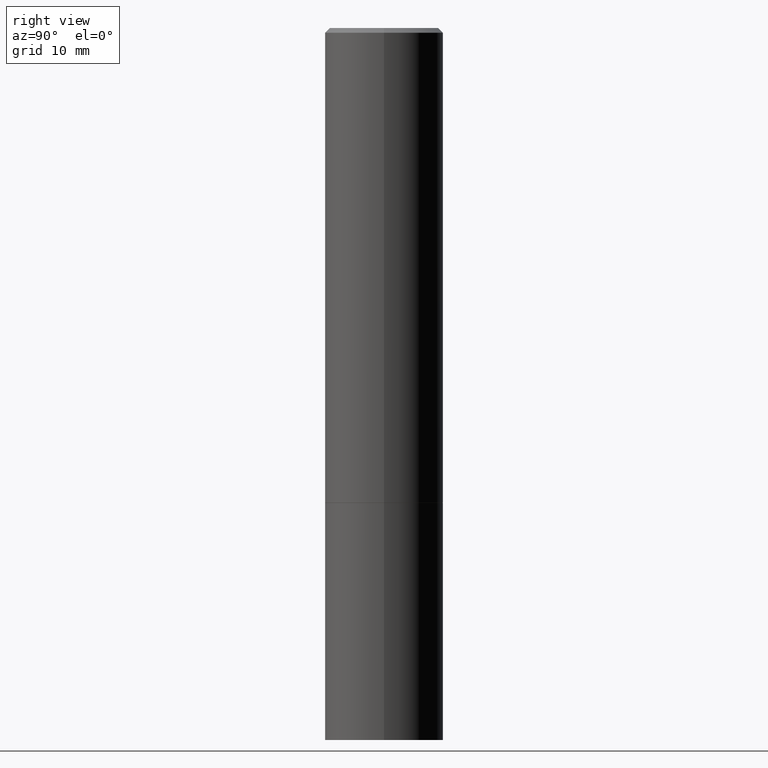
[diagram: clean part render]
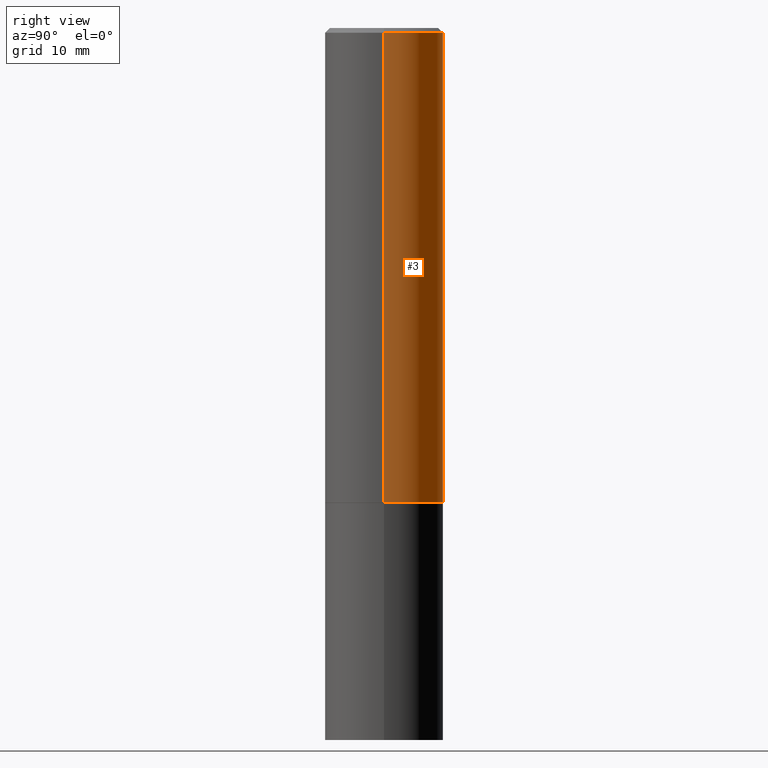
[diagram: same view with one face highlighted and labeled with its STEP entity id]
A machine part, right view. The second image highlights one B-rep face of the part: STEP entity #3.
In plain terms, the highlighted cylindrical surface (partial cylindrical patch) has radius 6.35 mm, axis along (-0, 0, 1).
Its self-contained STEP definition (entity closure, byte-faithful):
#2 = CARTESIAN_POINT ( 'NONE',  ( -0.2499999999999998057, 1.675911042644702196E-15, -0.02000000000000005246 ) ) ;
#3 = ADVANCED_FACE ( 'NONE', ( #242 ), #245, .T. ) ;
#11 = EDGE_CURVE ( 'NONE', #276, #206, #348, .T. ) ;
#28 = DIRECTION ( 'NONE',  ( -2.445468806185136877E-29, 3.491481338843145188E-15, 1.000000000000000000 ) ) ;
#30 = CARTESIAN_POINT ( 'NONE',  ( -0.2500000000000000000, -1.748293572161903489E-15, -1.999000000000000110 ) ) ;
#33 = ORIENTED_EDGE ( 'NONE', *, *, #11, .F. ) ;
#37 = CARTESIAN_POINT ( 'NONE',  ( 4.888492143564088712E-29, -6.979471196347448158E-15, -1.999000000000000110 ) ) ;
#41 = VERTEX_POINT ( 'NONE', #105 ) ;
#59 = AXIS2_PLACEMENT_3D ( 'NONE', #74, #163, #248 ) ;
#68 = CARTESIAN_POINT ( 'NONE',  ( 0.2499999999999998057, -1.784954126219744611E-15, -0.02000000000000005246 ) ) ;
#74 = CARTESIAN_POINT ( 'NONE',  ( 0.000000000000000000, 0.000000000000000000, 0.000000000000000000 ) ) ;
#85 = CARTESIAN_POINT ( 'NONE',  ( -0.2499999999999998890, 1.776356839400249676E-15, -1.229733772563726025E-29 ) ) ;
#105 = CARTESIAN_POINT ( 'NONE',  ( 0.2500000000000000000, -8.725211865769015625E-15, -1.999000000000000110 ) ) ;
#115 = DIRECTION ( 'NONE',  ( -2.445468806185136597E-29, 3.491481338843145583E-15, 1.000000000000000000 ) ) ;
#134 = EDGE_CURVE ( 'NONE', #152, #206, #315, .T. ) ;
#149 = EDGE_CURVE ( 'NONE', #41, #276, #339, .T. ) ;
#152 = VERTEX_POINT ( 'NONE', #30 ) ;
#163 = DIRECTION ( 'NONE',  ( -2.445468806185136597E-29, 3.491481338843145583E-15, 1.000000000000000000 ) ) ;
#171 = VECTOR ( 'NONE', #28, 39.37007874015748143 ) ;
#205 = DIRECTION ( 'NONE',  ( 1.000000000000000000, -6.982962677686266711E-15, 0.000000000000000000 ) ) ;
#206 = VERTEX_POINT ( 'NONE', #2 ) ;
#215 = CARTESIAN_POINT ( 'NONE',  ( 4.890937612370285420E-31, -6.982962677686308865E-17, -0.02000000000000005246 ) ) ;
#242 = FACE_OUTER_BOUND ( 'NONE', #290, .T. ) ;
#245 = CYLINDRICAL_SURFACE ( 'NONE', #59, 0.2499999999999998890 ) ;
#248 = DIRECTION ( 'NONE',  ( 1.000000000000000000, -6.982962677686266711E-15, 4.876176775795935793E-29 ) ) ;
#251 = ORIENTED_EDGE ( 'NONE', *, *, #280, .T. ) ;
#252 = DIRECTION ( 'NONE',  ( -2.445468806185136877E-29, 3.491481338843145188E-15, 1.000000000000000000 ) ) ;
#276 = VERTEX_POINT ( 'NONE', #68 ) ;
#280 = EDGE_CURVE ( 'NONE', #41, #152, #288, .T. ) ;
#281 = CARTESIAN_POINT ( 'NONE',  ( 0.2499999999999998890, -1.745740669421565889E-15, 1.219044193948983388E-29 ) ) ;
#288 = CIRCLE ( 'NONE', #349, 0.2500000000000000000 ) ;
#290 = EDGE_LOOP ( 'NONE', ( #251, #317, #33, #351 ) ) ;
#293 = AXIS2_PLACEMENT_3D ( 'NONE', #215, #303, #362 ) ;
#303 = DIRECTION ( 'NONE',  ( -2.445468806185136597E-29, 3.491481338843145583E-15, 1.000000000000000000 ) ) ;
#315 = LINE ( 'NONE', #85, #319 ) ;
#317 = ORIENTED_EDGE ( 'NONE', *, *, #134, .T. ) ;
#319 = VECTOR ( 'NONE', #252, 39.37007874015748143 ) ;
#339 = LINE ( 'NONE', #281, #171 ) ;
#348 = CIRCLE ( 'NONE', #293, 0.2499999999999998057 ) ;
#349 = AXIS2_PLACEMENT_3D ( 'NONE', #37, #115, #205 ) ;
#351 = ORIENTED_EDGE ( 'NONE', *, *, #149, .F. ) ;
#362 = DIRECTION ( 'NONE',  ( 1.000000000000000000, -6.982962677686266711E-15, 0.000000000000000000 ) ) ;